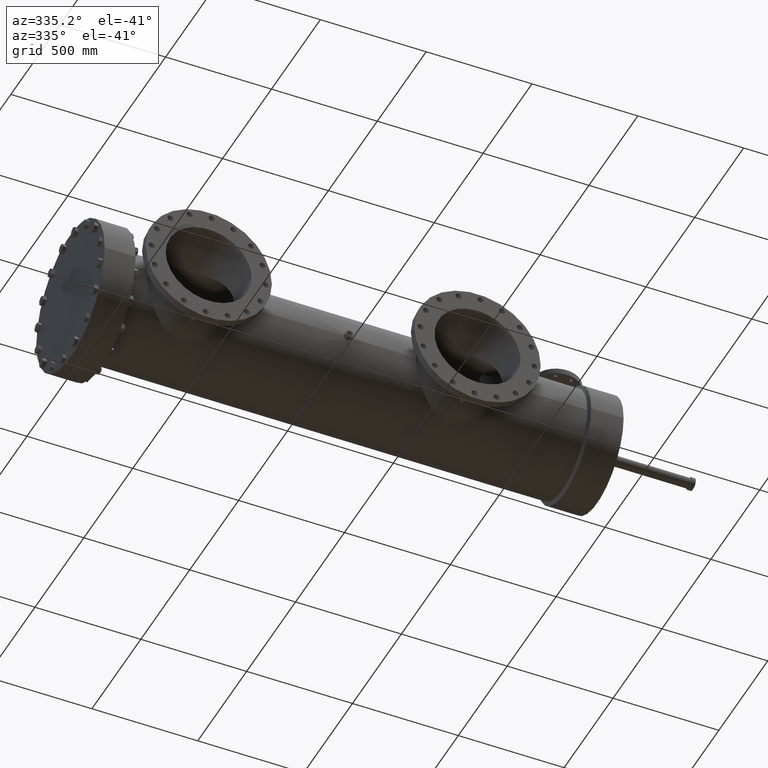
[diagram: clean part render]
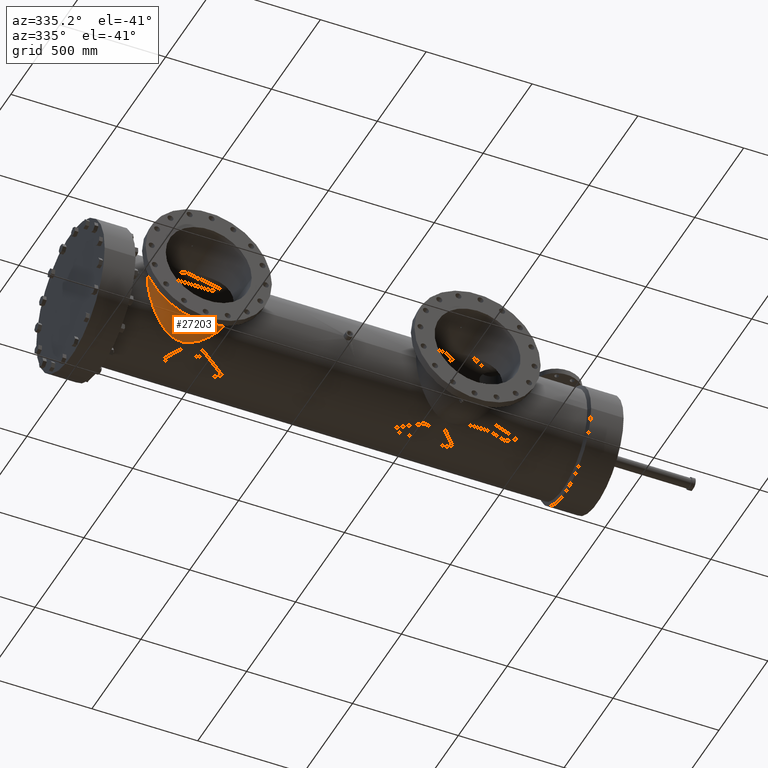
[diagram: same view with one face highlighted and labeled with its STEP entity id]
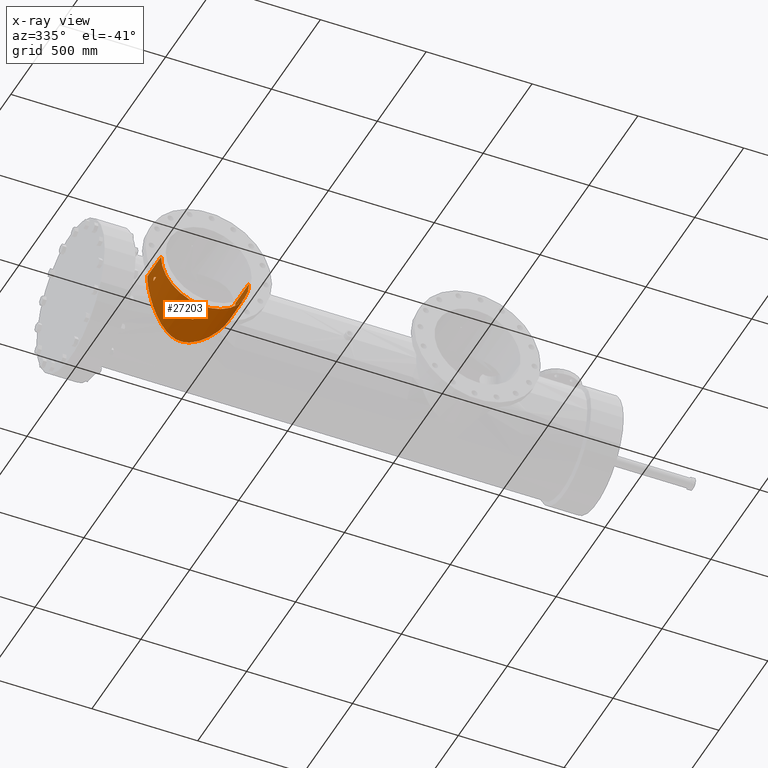
[diagram: x-ray of the same camera — body ghosted, the highlighted face saturated]
A machine part, auxiliary view. The second image highlights one B-rep face of the part: STEP entity #27203.
The next image is the same camera in x-ray: the body ghosted, the highlighted face saturated — about 0% of this face is hidden behind the body in this view.
In plain terms, the highlighted cylindrical surface (partial cylindrical patch) has radius 208.2 mm, axis along (-0, 1, -0).
Its self-contained STEP definition (entity closure, byte-faithful):
#29 = B_SPLINE_CURVE_WITH_KNOTS ( 'NONE', 3,
 ( #11283, #11099, #74, #4449, #19770, #21856, #8823, #11572, #807, #26782, #718, #425, #20230, #13761, #519, #26575, #15941, #2689, #16043, #9378, #7099, #24626, #22414, #2981, #26875, #2880, #18193, #17814, #5095, #15749, #2784, #18005, #4996, #9289, #7192, #18106, #20421, #20318, #7285, #5192, #11666, #7370, #22600, #22509, #9571, #24529, #9478, #24705, #24803, #17909, #22223, #11764, #26970, #15656, #2597, #4804, #20040, #26674, #6999, #9199, #11475, #24434, #11377, #13574, #4900, #20139, #22311, #621, #15838, #24900, #12155, #20804, #9938, #25178, #16407, #16126, #18282, #18477, #893, #3081, #27343, #5488, #14323, #25276, #5285, #14126, #20704, #20511, #9665, #7468, #1276, #14222, #22877, #18577, #14042, #12250, #23072, #11866, #13952, #18674, #22787, #27057, #7856, #7656, #9746, #989, #12054, #7562, #18386, #16220, #3174, #5388, #20602, #16497 ),
 .UNSPECIFIED., .F., .F.,
 ( 4, 2, 2, 2, 2, 2, 2, 2, 2, 2, 2, 2, 2, 2, 2, 2, 2, 2, 2, 2, 2, 2, 2, 2, 2, 2, 2, 2, 2, 2, 2, 2, 2, 2, 2, 2, 2, 2, 2, 2, 2, 2, 2, 2, 2, 2, 2, 2, 2, 2, 2, 2, 2, 2, 2, 2, 4 ),
 ( 0.8713693908895384643, 0.8929450396197977646, 0.9037328639849274703, 0.9091267761674922676, 0.9145206883500571760, 0.9360963370803165873, 0.9576719858105758876, 0.9630658979931406849, 0.9684598101757054822, 0.9792476345408350769, 1.000823283271093933, 1.011611107636223528, 1.017005019818788103, 1.022398932001352900, 1.043974580731611423, 1.065550229461869947, 1.087125878192128248, 1.092519790374692823, 1.097913702557257398, 1.108701526922386771, 1.130277175652645294, 1.151852824382904039, 1.157246736565468614, 1.162640648748033190, 1.173428473113162784, 1.195004121843421085, 1.200398034025985883, 1.203094990117267837, 1.205791946208550236, 1.216579770573679165, 1.238155419303937022, 1.243549331486501597, 1.248943243669065950, 1.259731068034195101, 1.281306716764453180, 1.292094541129582330, 1.297488453312146905, 1.302882365494711703, 1.324458014224970226, 1.346033662955228971, 1.367609311685487494, 1.378397136050616867, 1.383791048233181442, 1.389184960415746239, 1.410760609146005207, 1.432336257876264174, 1.453911906606523141, 1.459305818789087716, 1.464699730971652514, 1.475487555336782108, 1.497063204067040854, 1.507851028432170448, 1.513244940614735246, 1.515941896706017422, 1.518638852797299599, 1.540214501527558788, 1.561790150257817755 ),
 .UNSPECIFIED. ) ;
#35 = CARTESIAN_POINT ( 'NONE',  ( 16.22442065862206206, -12.31253936453356523, -8.172140000266423954 ) ) ;
#74 = CARTESIAN_POINT ( 'NONE',  ( 25.04258227525401992, -9.984429499507669448, -0.5681724033692350240 ) ) ;
#116 = FACE_BOUND ( 'NONE', #8437, .T. ) ;
#215 = CARTESIAN_POINT ( 'NONE',  ( 15.92901367197269380, -12.24405631860694577, -8.143766177971937026 ) ) ;
#223 = CARTESIAN_POINT ( 'NONE',  ( 16.12004162925159889, -11.67956360834154239, -8.163365227063412277 ) ) ;
#400 = CARTESIAN_POINT ( 'NONE',  ( 16.24454337501266110, -11.69575605555741760, -8.173698390205080599 ) ) ;
#425 = CARTESIAN_POINT ( 'NONE',  ( 24.58025419720421212, -9.609077485617902425, -2.769542446875071562 ) ) ;
#443 = FACE_BOUND ( 'NONE', #10930, .T. ) ;
#447 = VECTOR ( 'NONE', #18313, 39.37007874015748143 ) ;
#519 = CARTESIAN_POINT ( 'NONE',  ( 24.31736591070994180, -9.399287005056866207, -3.404121265907334326 ) ) ;
#562 = CARTESIAN_POINT ( 'NONE',  ( 16.46331948819042523, -12.00138295699645319, -8.187222372758387934 ) ) ;
#621 = CARTESIAN_POINT ( 'NONE',  ( 14.87986795427984710, -6.049017727904077546, -7.958728587519666497 ) ) ;
#718 = CARTESIAN_POINT ( 'NONE',  ( 24.74961834575157482, -9.745670436965387040, -2.242048021093386634 ) ) ;
#807 = CARTESIAN_POINT ( 'NONE',  ( 24.89468540804755037, -9.863599371025992824, -1.626373763940307526 ) ) ;
#893 = CARTESIAN_POINT ( 'NONE',  ( 12.48625661218382277, -7.199979410269640390, -6.936721989181484638 ) ) ;
#989 = CARTESIAN_POINT ( 'NONE',  ( 8.876156136468882352, -9.822379192291680994, -1.854716190553077571 ) ) ;
#1276 = CARTESIAN_POINT ( 'NONE',  ( 10.26163878952082520, -8.733062294738832776, -4.869413594533933853 ) ) ;
#1302 = CARTESIAN_POINT ( 'NONE',  ( 8.915440077302767108, -12.52748641595223056, -2.016077396955191503 ) ) ;
#1640 = CARTESIAN_POINT ( 'NONE',  ( 8.915321036858598447, -11.99173939721091919, -2.015641046227708344 ) ) ;
#1731 = CARTESIAN_POINT ( 'NONE',  ( 8.905546308635084785, -12.06637745106234227, -1.976685865810618781 ) ) ;
#1885 = DIRECTION ( 'NONE',  ( -1.404549096999621761E-16, 1.000000000000000000, -0.0000000000000000000 ) ) ;
#1977 = CARTESIAN_POINT ( 'NONE',  ( 16.86049224117985901, -6.035059426198157441E-15, 0.0000000000000000000 ) ) ;
#1998 = CARTESIAN_POINT ( 'NONE',  ( 16.16252857155608069, -12.32324261144508348, -8.167108181112828547 ) ) ;
#2094 = CARTESIAN_POINT ( 'NONE',  ( 16.12012749966308078, -12.32322402812685702, -8.163373651599783898 ) ) ;
#2196 = CARTESIAN_POINT ( 'NONE',  ( 16.06814889272852298, -11.68781752104529303, -8.158471460515317020 ) ) ;
#2283 = CARTESIAN_POINT ( 'NONE',  ( 16.06844871045136713, -12.31501500027542839, -8.158500449731997506 ) ) ;
#2389 = CARTESIAN_POINT ( 'NONE',  ( 16.39712990298287210, -11.80474553608546806, -8.183751514543576633 ) ) ;
#2562 = CARTESIAN_POINT ( 'NONE',  ( 15.88611098588387627, -11.80518881466508141, -8.138733528046516952 ) ) ;
#2597 = CARTESIAN_POINT ( 'NONE',  ( 17.40464047621242116, -5.747277580413180154, -8.178848184218423967 ) ) ;
#2689 = CARTESIAN_POINT ( 'NONE',  ( 24.13985706030984346, -9.259026885958020259, -3.770611314273344838 ) ) ;
#2784 = CARTESIAN_POINT ( 'NONE',  ( 22.21853781402447936, -7.837574484352123783, -6.208367006149152267 ) ) ;
#2880 = CARTESIAN_POINT ( 'NONE',  ( 23.19790627899974211, -8.538331828646162691, -5.199018151846304114 ) ) ;
#2981 = CARTESIAN_POINT ( 'NONE',  ( 23.32015558271065814, -8.629466929012632903, -5.046321995839336161 ) ) ;
#3081 = CARTESIAN_POINT ( 'NONE',  ( 12.06779424753076668, -7.461593928833218037, -6.654479336119714539 ) ) ;
#3174 = CARTESIAN_POINT ( 'NONE',  ( 8.736475727175248451, -9.936235972714930753, -1.126120661421989411 ) ) ;
#3289 = CARTESIAN_POINT ( 'NONE',  ( 8.908433558945770159, -12.47886641587568946, -1.988294947327748696 ) ) ;
#3475 = CARTESIAN_POINT ( 'NONE',  ( 8.944555557230717824, -12.65150026186875998, -2.127541887248033170 ) ) ;
#3645 = CARTESIAN_POINT ( 'NONE',  ( 9.000000000000000000, -11.77313103179035991, -2.324009058300751551 ) ) ;
#3755 = VECTOR ( 'NONE', #14436, 39.37007874015748143 ) ;
#3815 = CARTESIAN_POINT ( 'NONE',  ( 15.81961870078884758, -12.00138295699645496, -8.130494366865191225 ) ) ;
#3929 = CARTESIAN_POINT ( 'NONE',  ( 8.944464280840186632, -11.86760841528152710, -2.127279004779905947 ) ) ;
#4091 = VERTEX_POINT ( 'NONE', #15764 ) ;
#4383 = DIRECTION ( 'NONE',  ( -1.000000000000000000, -1.404549096999622008E-16, 0.0000000000000000000 ) ) ;
#4407 = CARTESIAN_POINT ( 'NONE',  ( 16.45247819261925670, -12.08488418316694002, -8.186689829340737745 ) ) ;
#4419 = CARTESIAN_POINT ( 'NONE',  ( 16.18324972622104596, -11.68156466140747618, -8.168851007570342659 ) ) ;
#4449 = CARTESIAN_POINT ( 'NONE',  ( 24.99822600027672337, -9.948121762532407431, -0.9929304356304047285 ) ) ;
#4497 = CARTESIAN_POINT ( 'NONE',  ( 15.99891951714213612, -12.29071098511107429, -8.151468052522112373 ) ) ;
#4511 = CARTESIAN_POINT ( 'NONE',  ( 16.46331948819042523, -12.00138295699645319, -8.187222372758387934 ) ) ;
#4570 = VECTOR ( 'NONE', #18912, 39.37007874015748143 ) ;
#4572 = B_SPLINE_CURVE_WITH_KNOTS ( 'NONE', 3,
 ( #19151, #8243, #23163, #27805, #6145, #12522, #14701, #1731, #16959, #1640, #21352, #23258, #21258, #3929, #23551, #16687, #25369, #25732, #12340, #3645 ),
 .UNSPECIFIED., .F., .F.,
 ( 4, 2, 2, 2, 2, 2, 2, 2, 2, 4 ),
 ( 0.01719725244709623124, 0.01827109879985551813, 0.01934494515261480502, 0.02149263785813337532, 0.02364033056365194216, 0.02578802326917050899, 0.02793571597468907930, 0.03008340868020764614, 0.03223110138572621297, 0.03437879409124477981 ),
 .UNSPECIFIED. ) ;
#4593 = CARTESIAN_POINT ( 'NONE',  ( 16.45294683438302741, -11.91763778623054471, -8.186713639498057304 ) ) ;
#4779 = CARTESIAN_POINT ( 'NONE',  ( 16.28343763527250232, -11.71234249468442279, -8.176518321127529632 ) ) ;
#4804 = CARTESIAN_POINT ( 'NONE',  ( 17.33270844432958313, -5.740908693099136428, -8.183316368054274648 ) ) ;
#4900 = CARTESIAN_POINT ( 'NONE',  ( 15.62960729638286494, -5.851959430203588219, -8.104211839205074597 ) ) ;
#4996 = CARTESIAN_POINT ( 'NONE',  ( 21.62093971440506124, -7.441370007627665650, -6.677700433403026992 ) ) ;
#5095 = CARTESIAN_POINT ( 'NONE',  ( 22.77192305725401411, -8.226126769377087200, -5.684026788614029435 ) ) ;
#5122 = DIRECTION ( 'NONE',  ( -1.404549096999621761E-16, 1.000000000000000000, -0.0000000000000000000 ) ) ;
#5153 = EDGE_CURVE ( 'NONE', #4091, #13330, #13427, .T. ) ;
#5192 = CARTESIAN_POINT ( 'NONE',  ( 20.52647038090841392, -6.792908744597833781, -7.335832803535463853 ) ) ;
#5285 = CARTESIAN_POINT ( 'NONE',  ( 11.28513678839077627, -7.988426710595213365, -6.008979288429924459 ) ) ;
#5310 = CARTESIAN_POINT ( 'NONE',  ( 15.83626473414197733, -12.10568051535314993, -8.132612148803040952 ) ) ;
#5388 = CARTESIAN_POINT ( 'NONE',  ( 8.678312420434419749, -9.983844994099696279, -0.5654426981465594526 ) ) ;
#5415 = AXIS2_PLACEMENT_3D ( 'NONE', #1977, #1885, #4383 ) ;
#5419 = CARTESIAN_POINT ( 'NONE',  ( 8.984561595650410126, -12.73177157588089337, -2.271290020945230914 ) ) ;
#5488 = CARTESIAN_POINT ( 'NONE',  ( 11.57116008189552758, -7.791242382742264994, -6.263176399219755552 ) ) ;
#6145 = CARTESIAN_POINT ( 'NONE',  ( 8.897371074672802749, -12.18901330999874943, -1.943466927891956519 ) ) ;
#6321 = CARTESIAN_POINT ( 'NONE',  ( 15.88598746780801818, -12.19826610728374305, -8.138724555630430402 ) ) ;
#6416 = CARTESIAN_POINT ( 'NONE',  ( 15.86833240367424125, -12.17195717598677618, -8.136584687435627572 ) ) ;
#6579 = CARTESIAN_POINT ( 'NONE',  ( 25.05734263488064428, -15.56000000000000050, 1.003824659773538701E-15 ) ) ;
#6594 = EDGE_CURVE ( 'NONE', #23597, #18152, #18355, .T. ) ;
#6598 = CARTESIAN_POINT ( 'NONE',  ( 16.43024946712435508, -12.14387763829333267, -8.185552658645091739 ) ) ;
#6606 = CARTESIAN_POINT ( 'NONE',  ( 16.43467823256388982, -11.86823680170254747, -8.185783730520242329 ) ) ;
#6692 = CARTESIAN_POINT ( 'NONE',  ( 16.41482280259934257, -12.17161210359392243, -8.184727855000934582 ) ) ;
#6700 = CARTESIAN_POINT ( 'NONE',  ( 15.90664363064841957, -11.78103191295653751, -8.141166070411610889 ) ) ;
#6788 = CARTESIAN_POINT ( 'NONE',  ( 15.83042739566043977, -11.91799988850708125, -8.131871395657899626 ) ) ;
#6877 = CARTESIAN_POINT ( 'NONE',  ( 15.83657686964628653, -11.89774702813330265, -8.132647987797787081 ) ) ;
#6999 = CARTESIAN_POINT ( 'NONE',  ( 16.97409858993480825, -5.720890785416584912, -8.197304769219549314 ) ) ;
#7022 = CARTESIAN_POINT ( 'NONE',  ( 16.86049224117986256, -15.56000000000000405, 0.0000000000000000000 ) ) ;
#7099 = CARTESIAN_POINT ( 'NONE',  ( 23.74113732672881483, -8.948483686436224716, -4.462493700388457718 ) ) ;
#7120 = CARTESIAN_POINT ( 'NONE',  ( 15.83007327976016398, -12.08548284170402631, -8.131827032969576763 ) ) ;
#7192 = CARTESIAN_POINT ( 'NONE',  ( 21.30177648947374536, -7.243113194911280139, -6.889661362786828391 ) ) ;
#7285 = CARTESIAN_POINT ( 'NONE',  ( 20.86430455719275301, -6.982908329415113080, -7.153615441249039364 ) ) ;
#7370 = CARTESIAN_POINT ( 'NONE',  ( 19.81605805246791618, -6.436615565838628150, -7.649872216745532860 ) ) ;
#7468 = CARTESIAN_POINT ( 'NONE',  ( 10.41790554195044294, -8.615416855903079707, -5.074143996338532858 ) ) ;
#7562 = CARTESIAN_POINT ( 'NONE',  ( 8.852846555480470059, -9.841335424746866067, -1.751347018393103250 ) ) ;
#7593 = CARTESIAN_POINT ( 'NONE',  ( 8.896192279516210277, -12.28834577281446627, -1.938629025202364797 ) ) ;
#7656 = CARTESIAN_POINT ( 'NONE',  ( 8.917526105145217485, -9.788777637481375749, -2.025468515925798574 ) ) ;
#7856 = CARTESIAN_POINT ( 'NONE',  ( 8.971023743493345748, -9.745403320258519742, -2.228037854856386168 ) ) ;
#7979 = CARTESIAN_POINT ( 'NONE',  ( 8.899254574497607706, -12.37199694428452723, -1.951170081800204681 ) ) ;
#8243 = CARTESIAN_POINT ( 'NONE',  ( 8.896192279516210277, -12.24556415304801504, -1.938629025202364797 ) ) ;
#8437 = EDGE_LOOP ( 'NONE', ( #16404, #22985, #16736 ) ) ;
#8593 = CARTESIAN_POINT ( 'NONE',  ( 16.46127589170884065, -12.04334098411336740, -8.187124024737981287 ) ) ;
#8625 = CYLINDRICAL_SURFACE ( 'NONE', #5415, 8.196850393700783499 ) ;
#8686 = CARTESIAN_POINT ( 'NONE',  ( 16.44633810288365794, -12.10508445945528955, -8.186381506831086341 ) ) ;
#8791 = CARTESIAN_POINT ( 'NONE',  ( 15.97145398264551197, -11.72789758519570213, -8.148499587200470629 ) ) ;
#8823 = CARTESIAN_POINT ( 'NONE',  ( 24.93427829764577552, -9.895878034270056745, -1.416827611931692044 ) ) ;
#8868 = EDGE_LOOP ( 'NONE', ( #13996, #17731, #22468, #19913 ) ) ;
#8881 = CARTESIAN_POINT ( 'NONE',  ( 16.24464593942759549, -12.30643018385168475, -8.173689043186691094 ) ) ;
#8892 = CARTESIAN_POINT ( 'NONE',  ( 16.46331948819042523, -11.98033649182785609, -8.187222372758384381 ) ) ;
#8978 = CARTESIAN_POINT ( 'NONE',  ( 15.89956533985342979, -11.78882125158185801, -8.140333025222485475 ) ) ;
#9068 = CARTESIAN_POINT ( 'NONE',  ( 15.92889980322288146, -11.75881009589033432, -8.143753129284991843 ) ) ;
#9168 = CARTESIAN_POINT ( 'NONE',  ( 16.30210069902360814, -11.72228271864038973, -8.177814057532819092 ) ) ;
#9199 = CARTESIAN_POINT ( 'NONE',  ( 16.54608311869036186, -5.723035025606835191, -8.195787045875782439 ) ) ;
#9289 = CARTESIAN_POINT ( 'NONE',  ( 21.35542607328227049, -7.276143403433207979, -6.854779383734000753 ) ) ;
#9378 = CARTESIAN_POINT ( 'NONE',  ( 23.88138440611788837, -9.056924144385364528, -4.238713974312926958 ) ) ;
#9403 = CARTESIAN_POINT ( 'NONE',  ( 15.81961870078884758, -12.02268903500512209, -8.130494366865189448 ) ) ;
#9478 = CARTESIAN_POINT ( 'NONE',  ( 18.98671954545418927, -6.103656498866209645, -7.916576840076854360 ) ) ;
#9571 = CARTESIAN_POINT ( 'NONE',  ( 19.18347887673273533, -6.174980135497341038, -7.861088967040783082 ) ) ;
#9665 = CARTESIAN_POINT ( 'NONE',  ( 10.74701655577346493, -8.372176159556275366, -5.466193896726582402 ) ) ;
#9746 = CARTESIAN_POINT ( 'NONE',  ( 8.900489353506175760, -9.802607226202919577, -1.957464078866419044 ) ) ;
#9776 = CARTESIAN_POINT ( 'NONE',  ( 8.896192279516210277, -12.25981600504048785, -1.938629025202364353 ) ) ;
#9873 = CARTESIAN_POINT ( 'NONE',  ( 8.921594662902903039, -12.56220367712793617, -2.040182479158973550 ) ) ;
#9938 = CARTESIAN_POINT ( 'NONE',  ( 13.86530138332451578, -6.457693294092951675, -7.630303261115486180 ) ) ;
#10108 = AXIS2_PLACEMENT_3D ( 'NONE', #7022, #5122, #11499 ) ;
#10440 = CIRCLE ( 'NONE', #10108, 8.196850393700783499 ) ;
#10480 = ORIENTED_EDGE ( 'NONE', *, *, #19036, .F. ) ;
#10930 = EDGE_LOOP ( 'NONE', ( #10480, #22948 ) ) ;
#10971 = CARTESIAN_POINT ( 'NONE',  ( 16.25468776561100981, -12.30284647933100572, -8.174438981238886015 ) ) ;
#10983 = CARTESIAN_POINT ( 'NONE',  ( 16.01802124416625261, -11.70359822003038452, -8.153458268124035513 ) ) ;
#11059 = CARTESIAN_POINT ( 'NONE',  ( 16.03812964878656544, -12.30637388437932245, -8.155499903430280639 ) ) ;
#11068 = CARTESIAN_POINT ( 'NONE',  ( 16.03773071610240919, -11.69652814116067319, -8.155459639415637341 ) ) ;
#11099 = CARTESIAN_POINT ( 'NONE',  ( 25.05734263488064784, -9.996543997250148195, -0.2843906761581976306 ) ) ;
#11255 = CARTESIAN_POINT ( 'NONE',  ( 15.98056553677108482, -11.72244201872237213, -8.149489075211333144 ) ) ;
#11283 = CARTESIAN_POINT ( 'NONE',  ( 25.05734263488064428, -9.996543997250146418, 1.003805526232174753E-15 ) ) ;
#11343 = CARTESIAN_POINT ( 'NONE',  ( 16.38374812204157038, -11.78844870448808635, -8.182988402618704527 ) ) ;
#11377 = CARTESIAN_POINT ( 'NONE',  ( 15.84024684550263373, -5.811305745784811627, -8.133416982425496045 ) ) ;
#11475 = CARTESIAN_POINT ( 'NONE',  ( 16.26263114964206480, -5.745902985309768063, -8.179925249280618260 ) ) ;
#11498 = CARTESIAN_POINT ( 'NONE',  ( 15.82171370076131289, -12.04376965562351920, -8.130763388154518267 ) ) ;
#11499 = DIRECTION ( 'NONE',  ( -1.000000000000000000, -2.666241653758782892E-16, 0.0000000000000000000 ) ) ;
#11572 = CARTESIAN_POINT ( 'NONE',  ( 24.90845882113970333, -9.874822839247828554, -1.556809460198970818 ) ) ;
#11666 = CARTESIAN_POINT ( 'NONE',  ( 20.29478188427371421, -6.670036037179261967, -7.447252435947659066 ) ) ;
#11698 = CARTESIAN_POINT ( 'NONE',  ( 9.000000000000000000, -6.035059426198157441E-15, -2.324009058300751551 ) ) ;
#11764 = CARTESIAN_POINT ( 'NONE',  ( 17.61925150186431210, -5.771253903324563339, -8.161966543017573628 ) ) ;
#11866 = CARTESIAN_POINT ( 'NONE',  ( 9.449742999094588924, -9.362043463349110084, -3.505324207244177259 ) ) ;
#12054 = CARTESIAN_POINT ( 'NONE',  ( 8.868248754326693017, -9.828807752958750754, -1.820343333931158991 ) ) ;
#12086 = CARTESIAN_POINT ( 'NONE',  ( 8.901006787591255076, -12.39942360250402409, -1.958305693098995715 ) ) ;
#12155 = CARTESIAN_POINT ( 'NONE',  ( 14.11246954346855098, -6.346111415272395639, -7.723612670910854128 ) ) ;
#12186 = CARTESIAN_POINT ( 'NONE',  ( 8.941686943762714890, -12.64275232920050840, -2.116835706743948720 ) ) ;
#12250 = CARTESIAN_POINT ( 'NONE',  ( 9.569644882303375510, -9.267479216775518225, -3.746521751469198858 ) ) ;
#12340 = CARTESIAN_POINT ( 'NONE',  ( 8.992095874745706041, -11.77942722551371624, -2.297274947685821189 ) ) ;
#12522 = CARTESIAN_POINT ( 'NONE',  ( 8.899120693774424495, -12.14735446723013368, -1.950626464281431716 ) ) ;
#12661 = CARTESIAN_POINT ( 'NONE',  ( 8.663641847479073732, -7.186347308069499794E-15, 0.0000000000000000000 ) ) ;
#12734 = LINE ( 'NONE', #11698, #447 ) ;
#12883 = CARTESIAN_POINT ( 'NONE',  ( 16.46331948819042879, -12.02242492291680698, -8.187222372758387934 ) ) ;
#12984 = CARTESIAN_POINT ( 'NONE',  ( 15.85285808658880136, -12.14422074253148232, -8.134682232645081612 ) ) ;
#13061 = EDGE_CURVE ( 'NONE', #23597, #17489, #12734, .T. ) ;
#13075 = CARTESIAN_POINT ( 'NONE',  ( 16.18339879231691114, -12.32117736745157721, -8.168863195924817688 ) ) ;
#13167 = CARTESIAN_POINT ( 'NONE',  ( 16.21422546882583404, -12.31507692899307926, -8.171340275899828143 ) ) ;
#13175 = CARTESIAN_POINT ( 'NONE',  ( 15.85233008227351448, -11.85844231648245817, -8.134619353660978547 ) ) ;
#13330 = VERTEX_POINT ( 'NONE', #15093 ) ;
#13427 = LINE ( 'NONE', #12661, #4570 ) ;
#13442 = CARTESIAN_POINT ( 'NONE',  ( 15.81961870078884758, -12.00138295699645496, -8.130494366865191225 ) ) ;
#13574 = CARTESIAN_POINT ( 'NONE',  ( 15.69985697851504902, -5.837579566895100491, -8.114573202853433642 ) ) ;
#13761 = CARTESIAN_POINT ( 'NONE',  ( 24.34558747340051355, -9.421695043894432686, -3.341618831735052808 ) ) ;
#13952 = CARTESIAN_POINT ( 'NONE',  ( 9.393025656413229285, -9.407015649638321264, -3.382841920728337559 ) ) ;
#13996 = ORIENTED_EDGE ( 'NONE', *, *, #18108, .F. ) ;
#14042 = CARTESIAN_POINT ( 'NONE',  ( 9.632108460121893145, -9.218421670948471203, -3.865662732107681965 ) ) ;
#14126 = CARTESIAN_POINT ( 'NONE',  ( 11.19234783546585632, -8.053456358991654795, -5.921533543745054473 ) ) ;
#14153 = CARTESIAN_POINT ( 'NONE',  ( 9.000000000000000000, -12.74650097829061401, -2.324009058300751551 ) ) ;
#14222 = CARTESIAN_POINT ( 'NONE',  ( 9.966097209023422110, -8.958457207364606489, -4.441100400990825925 ) ) ;
#14251 = CARTESIAN_POINT ( 'NONE',  ( 8.963391237528236744, -12.69817914769473788, -2.196531196269221997 ) ) ;
#14323 = CARTESIAN_POINT ( 'NONE',  ( 11.47468185232722959, -7.857090785022320389, -6.180428475736464478 ) ) ;
#14436 = DIRECTION ( 'NONE',  ( -1.404549096999621761E-16, 1.000000000000000000, -0.0000000000000000000 ) ) ;
#14441 = CARTESIAN_POINT ( 'NONE',  ( 8.898527591653724755, -12.35819120011220562, -1.948199504708701957 ) ) ;
#14701 = CARTESIAN_POINT ( 'NONE',  ( 8.900857490215303258, -12.12004411986369234, -1.957719702368936554 ) ) ;
#14970 = VERTEX_POINT ( 'NONE', #6579 ) ;
#15093 = CARTESIAN_POINT ( 'NONE',  ( 8.663641847479075508, -9.995885049502602371, -2.062765671598703860E-23 ) ) ;
#15148 = CARTESIAN_POINT ( 'NONE',  ( 15.84835425128931519, -12.13472974624637146, -8.134122543901881386 ) ) ;
#15248 = CARTESIAN_POINT ( 'NONE',  ( 16.02810425913963144, -12.30279122415869253, -8.154482342393855276 ) ) ;
#15260 = CARTESIAN_POINT ( 'NONE',  ( 15.82786981360354162, -11.92821523778743575, -8.131546690324457316 ) ) ;
#15344 = CARTESIAN_POINT ( 'NONE',  ( 16.45507815458793033, -12.07452207283103007, -8.186818678428087637 ) ) ;
#15356 = CARTESIAN_POINT ( 'NONE',  ( 15.84018403715462853, -11.88768854224964144, -8.133101757216305572 ) ) ;
#15437 = CARTESIAN_POINT ( 'NONE',  ( 16.22448494370899752, -11.68971368972792746, -8.172164886094416048 ) ) ;
#15656 = CARTESIAN_POINT ( 'NONE',  ( 17.44061807827576160, -5.750799286677628075, -8.176374535956412615 ) ) ;
#15749 = CARTESIAN_POINT ( 'NONE',  ( 22.40777607641416225, -7.968451082004021302, -6.039935171693591620 ) ) ;
#15764 = CARTESIAN_POINT ( 'NONE',  ( 8.663641847479077285, -15.56000000000000583, 0.0000000000000000000 ) ) ;
#15838 = CARTESIAN_POINT ( 'NONE',  ( 14.61895617844157869, -6.140389416058959604, -7.888918546319036551 ) ) ;
#15941 = CARTESIAN_POINT ( 'NONE',  ( 24.23021447128627415, -9.330291189848274769, -3.588889382098336522 ) ) ;
#16016 = B_SPLINE_CURVE_WITH_KNOTS ( 'NONE', 3,
 ( #13442, #26358, #19916, #15260, #6788, #6877, #15356, #13175, #22093, #17515, #2562, #8978, #6700, #9068, #24304, #8791, #11255, #26457, #10983, #11068, #22193, #2196, #17785, #223, #26271, #4419, #15437, #400, #17425, #4779, #9168, #20007, #17614, #24398, #11343, #2389, #26544, #24129, #19639, #6606, #21823, #4593, #24029, #8892, #4511 ),
 .UNSPECIFIED., .F., .F.,
 ( 4, 2, 2, 2, 2, 2, 2, 2, 2, 1, 2, 2, 2, 2, 2, 2, 2, 2, 2, 2, 2, 2, 4 ),
 ( 5.551115123125782702E-17, 0.001600728466392453133, 0.002401092699588569870, 0.003201456932784687258, 0.004802185399176836164, 0.005602549632372841662, 0.006402913865568847160, 0.008003642331960741929, 0.008804006565156733549, 0.009604370798352726904, 0.01040473503154872026, 0.01120509926474471188, 0.01280582773113672287, 0.01440655619752873387, 0.01600728466392074487, 0.01680764889711672261, 0.01760801313031270035, 0.01920874159670469747, 0.02080947006309669806, 0.02160983429629263070, 0.02241019852948855987, 0.02401092699588020657, 0.02561165546227184980 ),
 .UNSPECIFIED. ) ;
#16043 = CARTESIAN_POINT ( 'NONE',  ( 24.07707822191158442, -9.209734001896183742, -3.889352105707560625 ) ) ;
#16126 = CARTESIAN_POINT ( 'NONE',  ( 13.38119572321766348, -6.692886612729321172, -7.426410559034922976 ) ) ;
#16144 = CARTESIAN_POINT ( 'NONE',  ( 15.81961870078884758, -12.00138295699645496, -8.130494366865191225 ) ) ;
#16220 = CARTESIAN_POINT ( 'NONE',  ( 8.779968486783445769, -9.900665656163274875, -1.404881933118762971 ) ) ;
#16404 = ORIENTED_EDGE ( 'NONE', *, *, #6594, .F. ) ;
#16407 = CARTESIAN_POINT ( 'NONE',  ( 13.68222159032051621, -6.544620184970169063, -7.555875008975291962 ) ) ;
#16434 = CARTESIAN_POINT ( 'NONE',  ( 8.992089195137980440, -12.74019946378819235, -2.297252355258952772 ) ) ;
#16497 = CARTESIAN_POINT ( 'NONE',  ( 8.663641847479075508, -9.995885049502602371, -2.062765671598703860E-23 ) ) ;
#16523 = CARTESIAN_POINT ( 'NONE',  ( 8.896781172144203609, -12.31650105104786519, -1.941052920603975052 ) ) ;
#16558 = CARTESIAN_POINT ( 'NONE',  ( 9.000000000000000000, -11.77313103179035991, -2.324009058300751551 ) ) ;
#16687 = CARTESIAN_POINT ( 'NONE',  ( 8.963410548497293462, -11.82141488931819850, -2.196600598724384401 ) ) ;
#16736 = ORIENTED_EDGE ( 'NONE', *, *, #25486, .F. ) ;
#16796 = CARTESIAN_POINT ( 'NONE',  ( 8.896192279516210277, -12.25981600504048785, -1.938629025202364353 ) ) ;
#16959 = CARTESIAN_POINT ( 'NONE',  ( 8.908448963166685886, -12.04063879887014465, -1.988356607306446699 ) ) ;
#17232 = CARTESIAN_POINT ( 'NONE',  ( 15.98047225825942697, -12.28086007100686849, -8.149492590130030578 ) ) ;
#17417 = CARTESIAN_POINT ( 'NONE',  ( 16.38376100986814876, -12.21427673427460725, -8.182988790306735538 ) ) ;
#17425 = CARTESIAN_POINT ( 'NONE',  ( 16.27378300283023904, -11.70779853276588689, -8.175831709808687009 ) ) ;
#17489 = VERTEX_POINT ( 'NONE', #16558 ) ;
#17508 = CARTESIAN_POINT ( 'NONE',  ( 16.33723666495084004, -12.25706878302622194, -8.180136158134329705 ) ) ;
#17515 = CARTESIAN_POINT ( 'NONE',  ( 15.87978147892997072, -11.81371849464396817, -8.137972566001746344 ) ) ;
#17614 = CARTESIAN_POINT ( 'NONE',  ( 16.33732777656515722, -11.74512649913768492, -8.180156581477220357 ) ) ;
#17731 = ORIENTED_EDGE ( 'NONE', *, *, #25134, .T. ) ;
#17785 = CARTESIAN_POINT ( 'NONE',  ( 16.09920905067954067, -11.68162117166363601, -8.161448216415735146 ) ) ;
#17814 = CARTESIAN_POINT ( 'NONE',  ( 22.94682977093033216, -8.352935829092626108, -5.496555604696871100 ) ) ;
#17909 = CARTESIAN_POINT ( 'NONE',  ( 18.24906552472083021, -5.881990683847043044, -8.083093049291759868 ) ) ;
#18005 = CARTESIAN_POINT ( 'NONE',  ( 21.82511537875572571, -7.574040412797885757, -6.527249830178673662 ) ) ;
#18106 = CARTESIAN_POINT ( 'NONE',  ( 21.19382565757946679, -7.177421175261990527, -6.958064455747417831 ) ) ;
#18108 = EDGE_CURVE ( 'NONE', #14970, #26943, #18366, .T. ) ;
#18152 = VERTEX_POINT ( 'NONE', #16796 ) ;
#18193 = CARTESIAN_POINT ( 'NONE',  ( 23.15640767319726834, -8.507570661843617543, -5.249191340449647747 ) ) ;
#18282 = CARTESIAN_POINT ( 'NONE',  ( 13.14974587374692483, -6.816789222240069002, -7.313259466807027209 ) ) ;
#18313 = DIRECTION ( 'NONE',  ( -1.404549096999621761E-16, 1.000000000000000000, -0.0000000000000000000 ) ) ;
#18355 = B_SPLINE_CURVE_WITH_KNOTS ( 'NONE', 3,
 ( #14153, #16434, #5419, #25207, #14251, #27551, #27460, #3475, #12186, #23000, #27369, #9873, #18708, #1302, #20633, #3289, #20737, #22815, #12086, #7979, #14441, #16523, #7593, #9776 ),
 .UNSPECIFIED., .F., .F.,
 ( 4, 2, 2, 2, 2, 2, 2, 2, 2, 2, 2, 4 ),
 ( 0.0000000000000000000, 0.002149656555886917016, 0.004299313111773834031, 0.005374141389717293840, 0.006448969667660751914, 0.008598626223547777350, 0.009673454501491355120, 0.01074828277943493116, 0.01289793933532208323, 0.01397276761326566100, 0.01504759589120923703, 0.01719725244709623124 ),
 .UNSPECIFIED. ) ;
#18366 = LINE ( 'NONE', #27837, #3755 ) ;
#18386 = CARTESIAN_POINT ( 'NONE',  ( 8.845347008663779320, -9.847438391030959082, -1.716699280375409531 ) ) ;
#18477 = CARTESIAN_POINT ( 'NONE',  ( 12.70226576587843859, -7.070322802243727445, -7.068419569632353294 ) ) ;
#18577 = CARTESIAN_POINT ( 'NONE',  ( 9.664101414562411563, -9.193355967072225354, -3.924894883136047508 ) ) ;
#18604 = EDGE_CURVE ( 'NONE', #22474, #22239, #22942, .T. ) ;
#18674 = CARTESIAN_POINT ( 'NONE',  ( 9.231598222238661222, -9.535491398189479995, -3.010251407872409857 ) ) ;
#18708 = CARTESIAN_POINT ( 'NONE',  ( 8.919439200880432850, -12.55078835838592255, -2.031772272769004850 ) ) ;
#18912 = DIRECTION ( 'NONE',  ( -1.404549096999621761E-16, 1.000000000000000000, -0.0000000000000000000 ) ) ;
#19036 = EDGE_CURVE ( 'NONE', #22239, #22474, #16016, .T. ) ;
#19094 = CARTESIAN_POINT ( 'NONE',  ( 9.000000000000000000, -12.74650097829061401, -2.324009058300751551 ) ) ;
#19151 = CARTESIAN_POINT ( 'NONE',  ( 8.896192279516210277, -12.25981600504048785, -1.938629025202364353 ) ) ;
#19424 = CARTESIAN_POINT ( 'NONE',  ( 15.89931312989521039, -12.21442791892592972, -8.140314158704315517 ) ) ;
#19533 = CARTESIAN_POINT ( 'NONE',  ( 16.43923814464709210, -12.12487966099850212, -8.186021592750483578 ) ) ;
#19639 = CARTESIAN_POINT ( 'NONE',  ( 16.43009473725399516, -11.85857266422726752, -8.185544540790848700 ) ) ;
#19770 = CARTESIAN_POINT ( 'NONE',  ( 24.97973052983511622, -9.932992426886954718, -1.134363754099367627 ) ) ;
#19913 = ORIENTED_EDGE ( 'NONE', *, *, #25394, .F. ) ;
#19916 = CARTESIAN_POINT ( 'NONE',  ( 15.82171434185384662, -11.95912225637678894, -8.130763430648737966 ) ) ;
#20007 = CARTESIAN_POINT ( 'NONE',  ( 16.31112946979314415, -11.72768035766542916, -8.178424879925167090 ) ) ;
#20040 = CARTESIAN_POINT ( 'NONE',  ( 17.29677248819094615, -5.738062087922620513, -8.185310516127168867 ) ) ;
#20139 = CARTESIAN_POINT ( 'NONE',  ( 15.42077247651961791, -5.898233042979255103, -8.070653443016057693 ) ) ;
#20230 = CARTESIAN_POINT ( 'NONE',  ( 24.48285511019576433, -9.530900425983386270, -3.027096211661578273 ) ) ;
#20318 = CARTESIAN_POINT ( 'NONE',  ( 20.97528966825623442, -7.047202218824806685, -7.090353488001029270 ) ) ;
#20421 = CARTESIAN_POINT ( 'NONE',  ( 21.13947815571598454, -7.144730158287094568, -6.991617440793417515 ) ) ;
#20511 = CARTESIAN_POINT ( 'NONE',  ( 10.91985992735824773, -8.246572514205782412, -5.653509254039753351 ) ) ;
#20602 = CARTESIAN_POINT ( 'NONE',  ( 8.663641847479075508, -9.995885049502602371, -0.2835260806983585513 ) ) ;
#20633 = CARTESIAN_POINT ( 'NONE',  ( 8.913584702572054042, -12.51554595991646579, -2.008747464508381153 ) ) ;
#20704 = CARTESIAN_POINT ( 'NONE',  ( 11.14649087278304052, -8.085799144408198913, -5.877295501629414609 ) ) ;
#20737 = CARTESIAN_POINT ( 'NONE',  ( 8.905549423805387832, -12.45327550901318325, -1.976698323805846647 ) ) ;
#20804 = CARTESIAN_POINT ( 'NONE',  ( 13.92680094512693323, -6.429391561331186722, -7.654160830642744884 ) ) ;
#21258 = CARTESIAN_POINT ( 'NONE',  ( 8.933461119592831068, -11.90435836639922051, -2.085903216941653149 ) ) ;
#21352 = CARTESIAN_POINT ( 'NONE',  ( 8.919300047654198593, -11.96848276386064924, -2.031294317664846361 ) ) ;
#21529 = CARTESIAN_POINT ( 'NONE',  ( 16.05828153371954414, -12.31247512429933266, -8.157506781428693898 ) ) ;
#21813 = CARTESIAN_POINT ( 'NONE',  ( 16.30240182586242170, -12.28090328271185072, -8.177848116046401827 ) ) ;
#21823 = CARTESIAN_POINT ( 'NONE',  ( 16.44683932018387651, -11.89753698084637712, -8.186410296457616198 ) ) ;
#21856 = CARTESIAN_POINT ( 'NONE',  ( 24.94634375359475698, -9.905725604285223085, -1.346282095386131417 ) ) ;
#22093 = CARTESIAN_POINT ( 'NONE',  ( 15.86223604359758532, -11.83995399496396139, -8.135845362997599750 ) ) ;
#22193 = CARTESIAN_POINT ( 'NONE',  ( 16.05783813475186506, -11.69041033366439031, -8.157463137686830734 ) ) ;
#22223 = CARTESIAN_POINT ( 'NONE',  ( 17.97299216128743993, -5.822032630870017655, -8.125983861494711746 ) ) ;
#22239 = VERTEX_POINT ( 'NONE', #3815 ) ;
#22311 = CARTESIAN_POINT ( 'NONE',  ( 15.28394999202056326, -5.933254883014196679, -8.044988511058640768 ) ) ;
#22414 = CARTESIAN_POINT ( 'NONE',  ( 23.43946280642097335, -8.719020996734158757, -4.891067558109155833 ) ) ;
#22468 = ORIENTED_EDGE ( 'NONE', *, *, #5153, .T. ) ;
#22474 = VERTEX_POINT ( 'NONE', #562 ) ;
#22509 = CARTESIAN_POINT ( 'NONE',  ( 19.24824529817223251, -6.199657591827878456, -7.841652424587334913 ) ) ;
#22600 = CARTESIAN_POINT ( 'NONE',  ( 19.56904506872233185, -6.326036779461149173, -7.741087422134342866 ) ) ;
#22787 = CARTESIAN_POINT ( 'NONE',  ( 9.135583482700670999, -9.612570015525360390, -2.755015072703276946 ) ) ;
#22815 = CARTESIAN_POINT ( 'NONE',  ( 8.902038491120856989, -12.41311255709651462, -1.962496895147855414 ) ) ;
#22877 = CARTESIAN_POINT ( 'NONE',  ( 9.826817776144276095, -9.066216025071939910, -4.217526554590561361 ) ) ;
#22942 = B_SPLINE_CURVE_WITH_KNOTS ( 'NONE', 3,
 ( #25899, #12883, #8593, #15344, #4407, #8686, #19533, #6598, #28173, #6692, #23925, #17417, #28075, #26175, #17508, #25995, #21813, #24018, #10971, #8881, #35, #13167, #13075, #1998, #2094, #24118, #2283, #21529, #11059, #15248, #4497, #17232, #26261, #215, #19424, #6321, #6416, #23823, #12984, #15148, #5310, #7120, #11498, #9403, #16144 ),
 .UNSPECIFIED., .F., .F.,
 ( 4, 2, 2, 1, 2, 2, 2, 2, 2, 2, 2, 2, 2, 2, 2, 2, 2, 2, 2, 2, 2, 2, 4 ),
 ( 0.02561165546227184980, 0.02721204172988251138, 0.02801223486368776411, 0.02881242799749301337, 0.02961262113129826609, 0.03041281426510351535, 0.03201320053271387855, 0.03281339366651900291, 0.03361358680032412727, 0.03521397306793423027, 0.03601416620173925054, 0.03681435933554427775, 0.03841474560315432524, 0.04001513187076437272, 0.04081532500456940687, 0.04161551813837442715, 0.04321590440598448157, 0.04481629067359452212, 0.04641667694120457655, 0.04721687007500961764, 0.04801706320881466566, 0.04961744947642482417, 0.05121783574403497574 ),
 .UNSPECIFIED. ) ;
#22948 = ORIENTED_EDGE ( 'NONE', *, *, #18604, .F. ) ;
#22985 = ORIENTED_EDGE ( 'NONE', *, *, #13061, .T. ) ;
#23000 = CARTESIAN_POINT ( 'NONE',  ( 8.933441883619252621, -12.61519955818686967, -2.085829928242457498 ) ) ;
#23072 = CARTESIAN_POINT ( 'NONE',  ( 9.539130205809895457, -9.291505377491546369, -3.686536418010511351 ) ) ;
#23163 = CARTESIAN_POINT ( 'NONE',  ( 8.896341939453902725, -12.23125712395767906, -1.939244156519213114 ) ) ;
#23258 = CARTESIAN_POINT ( 'NONE',  ( 8.928432510115927201, -11.92449235258818696, -2.066668450023934511 ) ) ;
#23551 = CARTESIAN_POINT ( 'NONE',  ( 8.950454727712010339, -11.85095715106424130, -2.149479003561030499 ) ) ;
#23597 = VERTEX_POINT ( 'NONE', #19094 ) ;
#23823 = CARTESIAN_POINT ( 'NONE',  ( 15.86283030023668594, -12.16281210304929239, -8.135911274541006932 ) ) ;
#23925 = CARTESIAN_POINT ( 'NONE',  ( 16.39711868923799543, -12.19805808324130147, -8.183751038299849512 ) ) ;
#24018 = CARTESIAN_POINT ( 'NONE',  ( 16.28390347199819033, -12.29076905113898910, -8.176569154821825336 ) ) ;
#24029 = CARTESIAN_POINT ( 'NONE',  ( 16.46120652432358256, -11.95896112253714172, -8.187120640986019993 ) ) ;
#24118 = CARTESIAN_POINT ( 'NONE',  ( 16.09921888060525674, -12.32113290910971592, -8.161448640512638519 ) ) ;
#24129 = CARTESIAN_POINT ( 'NONE',  ( 16.42009609206550991, -11.83993160951427370, -8.185012686153983807 ) ) ;
#24304 = CARTESIAN_POINT ( 'NONE',  ( 15.94508926060354881, -11.74551291098816641, -8.145594296550132896 ) ) ;
#24398 = CARTESIAN_POINT ( 'NONE',  ( 16.35361801578664398, -11.75841596690247925, -8.181177340221715610 ) ) ;
#24434 = CARTESIAN_POINT ( 'NONE',  ( 15.91055129080799446, -5.799373139628747786, -8.141927580709115375 ) ) ;
#24529 = CARTESIAN_POINT ( 'NONE',  ( 19.05265004224024139, -6.126953847930331598, -7.898571442478552918 ) ) ;
#24626 = CARTESIAN_POINT ( 'NONE',  ( 23.51665078717671875, -8.777436721190889912, -4.785509627815138778 ) ) ;
#24705 = CARTESIAN_POINT ( 'NONE',  ( 18.78818051331695571, -6.036387310819856467, -7.968128666911614921 ) ) ;
#24803 = CARTESIAN_POINT ( 'NONE',  ( 18.65448991809553547, -5.994912120796620059, -7.999310712153507197 ) ) ;
#24871 = CARTESIAN_POINT ( 'NONE',  ( 25.05734263488064428, -9.996543997250146418, 1.003805526232174753E-15 ) ) ;
#24900 = CARTESIAN_POINT ( 'NONE',  ( 14.23780649883225990, -6.292754494542220911, -7.767088689925867762 ) ) ;
#25134 = EDGE_CURVE ( 'NONE', #14970, #4091, #10440, .T. ) ;
#25178 = CARTESIAN_POINT ( 'NONE',  ( 13.74304907509426066, -6.515288793193099615, -7.581176969164880930 ) ) ;
#25207 = CARTESIAN_POINT ( 'NONE',  ( 8.970212560958286119, -12.71076099097026813, -2.220929638758927016 ) ) ;
#25276 = CARTESIAN_POINT ( 'NONE',  ( 11.33230862056675292, -7.955573239885914028, -6.052405766421421696 ) ) ;
#25369 = CARTESIAN_POINT ( 'NONE',  ( 8.970230251853394066, -11.80884159544294043, -2.220992345205687890 ) ) ;
#25394 = EDGE_CURVE ( 'NONE', #26943, #13330, #29, .T. ) ;
#25486 = EDGE_CURVE ( 'NONE', #18152, #17489, #4572, .T. ) ;
#25732 = CARTESIAN_POINT ( 'NONE',  ( 8.984572967313937397, -11.78784731013391607, -2.271329313247979265 ) ) ;
#25899 = CARTESIAN_POINT ( 'NONE',  ( 16.46331948819042523, -12.00138295699645319, -8.187222372758387934 ) ) ;
#25995 = CARTESIAN_POINT ( 'NONE',  ( 16.32868407893361606, -12.26339258596539317, -8.179585169267509670 ) ) ;
#26175 = CARTESIAN_POINT ( 'NONE',  ( 16.35364643127466877, -12.24362449148552479, -8.181169310596922983 ) ) ;
#26261 = CARTESIAN_POINT ( 'NONE',  ( 15.94556812336850449, -12.25760600054548100, -8.145647826021617632 ) ) ;
#26271 = CARTESIAN_POINT ( 'NONE',  ( 16.16195356394217342, -11.67950220897561842, -8.167058384481892475 ) ) ;
#26358 = CARTESIAN_POINT ( 'NONE',  ( 15.81961870078884580, -11.98007232326639659, -8.130494366865191225 ) ) ;
#26457 = CARTESIAN_POINT ( 'NONE',  ( 15.99909507141636666, -11.71254452554100212, -8.151468463291994482 ) ) ;
#26544 = CARTESIAN_POINT ( 'NONE',  ( 16.41466869204471024, -11.83091325905793667, -8.184719422352516816 ) ) ;
#26575 = CARTESIAN_POINT ( 'NONE',  ( 24.25969800598959125, -9.353599889177578675, -3.527713220535358740 ) ) ;
#26649 = FACE_OUTER_BOUND ( 'NONE', #8868, .T. ) ;
#26674 = CARTESIAN_POINT ( 'NONE',  ( 17.11724258902847140, -5.725517301859490260, -8.194090114091613586 ) ) ;
#26782 = CARTESIAN_POINT ( 'NONE',  ( 24.82158872232306024, -9.804093524720274289, -1.972110688695772218 ) ) ;
#26875 = CARTESIAN_POINT ( 'NONE',  ( 23.27979858038719740, -8.599293774269202828, -5.097559470314838137 ) ) ;
#26943 = VERTEX_POINT ( 'NONE', #24871 ) ;
#26970 = CARTESIAN_POINT ( 'NONE',  ( 17.54806991030366348, -5.762307815881686501, -8.168277295439660080 ) ) ;
#27057 = CARTESIAN_POINT ( 'NONE',  ( 9.009869864493442293, -9.713974367617897343, -2.361159974592507371 ) ) ;
#27203 = ADVANCED_FACE ( 'NONE', ( #26649, #443, #116 ), #8625, .T. ) ;
#27343 = CARTESIAN_POINT ( 'NONE',  ( 11.86535113658058016, -7.593567664558270813, -6.503933379958306560 ) ) ;
#27369 = CARTESIAN_POINT ( 'NONE',  ( 8.928423894401804617, -12.59509528130657152, -2.066634906910162162 ) ) ;
#27460 = CARTESIAN_POINT ( 'NONE',  ( 8.950543702286624992, -12.66811824539559339, -2.149698159823226540 ) ) ;
#27551 = CARTESIAN_POINT ( 'NONE',  ( 8.953673822659993675, -12.67601209447775545, -2.161186750052941363 ) ) ;
#27805 = CARTESIAN_POINT ( 'NONE',  ( 8.896931465503287839, -12.20301578682702015, -1.941663642132986478 ) ) ;
#27837 = CARTESIAN_POINT ( 'NONE',  ( 25.05734263488064428, -4.883771544326814300E-15, 1.003824659773538701E-15 ) ) ;
#28075 = CARTESIAN_POINT ( 'NONE',  ( 16.36146016253293212, -12.23654666612388198, -8.181648905893860402 ) ) ;
#28173 = CARTESIAN_POINT ( 'NONE',  ( 16.42030452573864352, -12.16247187684238895, -8.185023881898779052 ) ) ;